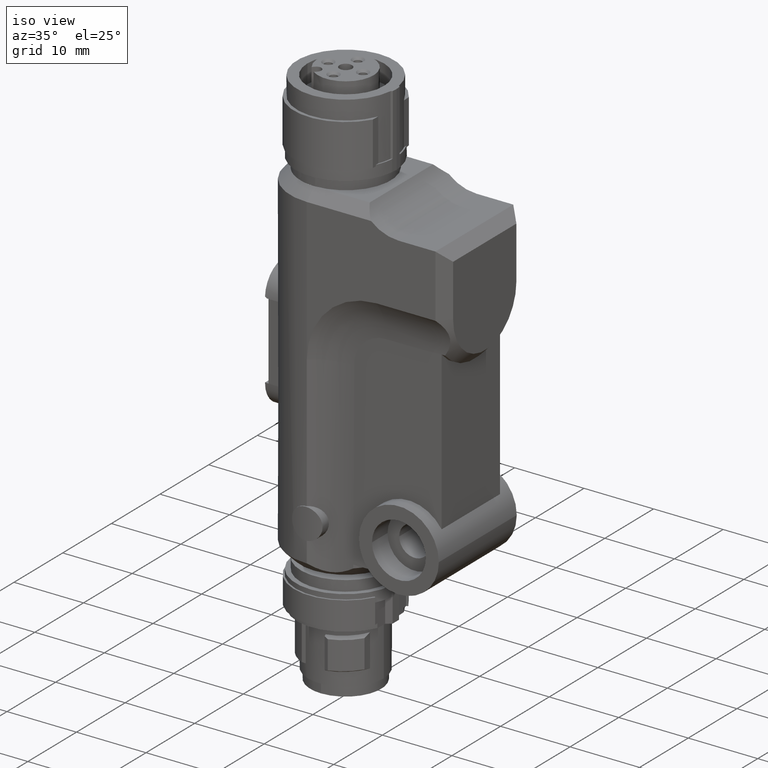
[diagram: clean part render]
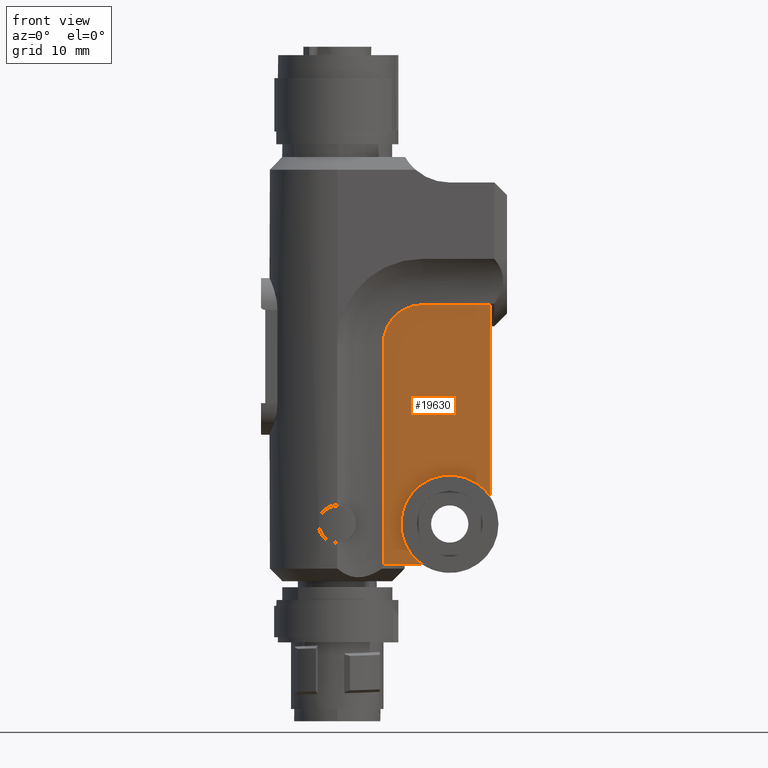
[diagram: tour spotlight — one face highlighted and labeled with its STEP entity id]
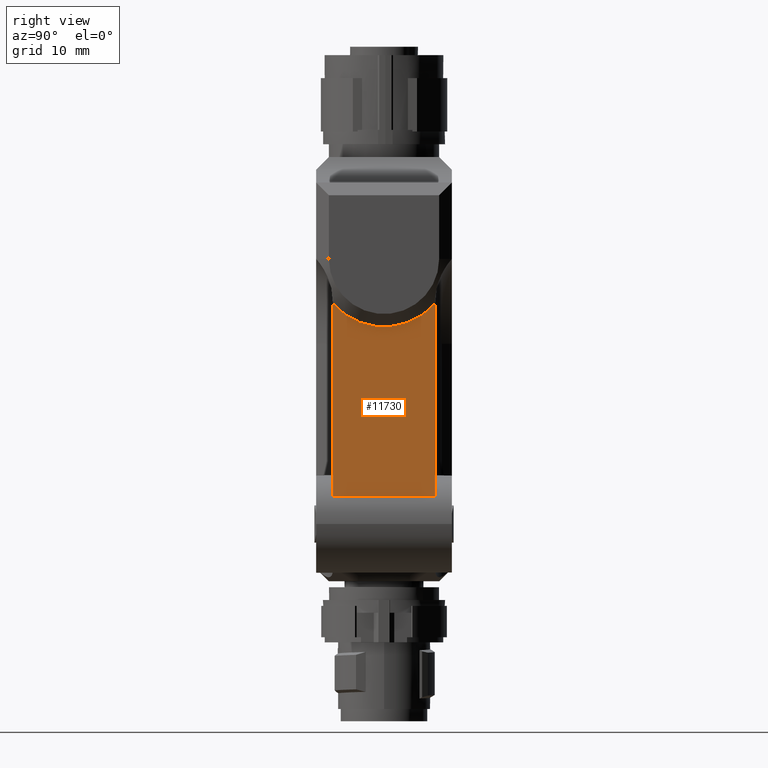
[diagram: tour spotlight — one face highlighted and labeled with its STEP entity id]
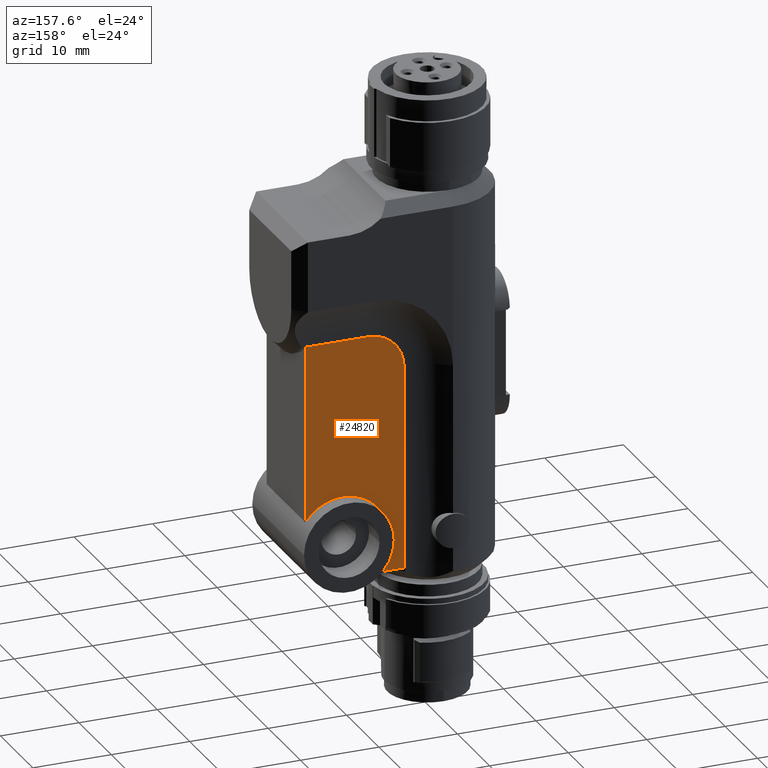
[diagram: tour spotlight — one face highlighted and labeled with its STEP entity id]
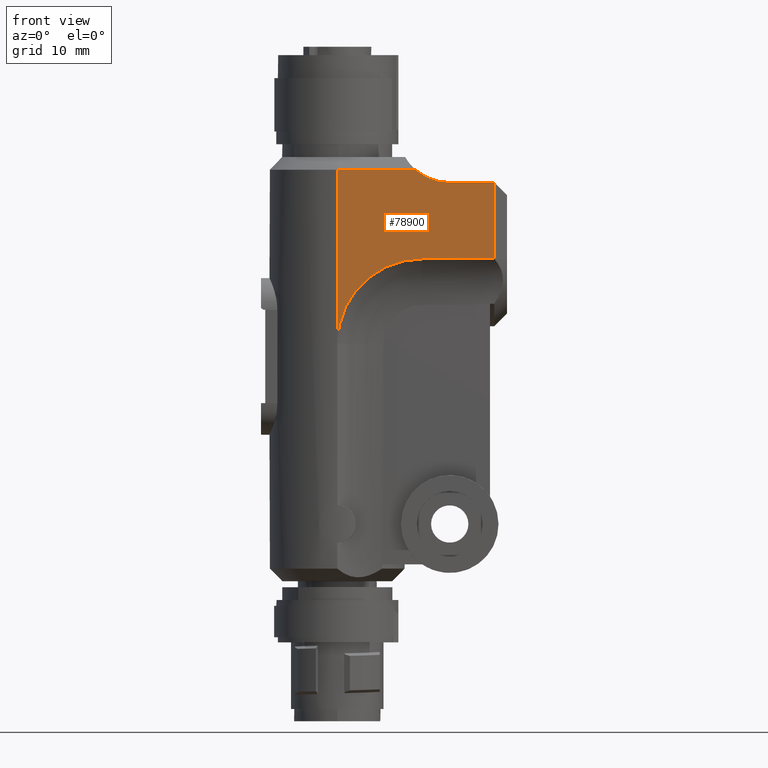
[diagram: tour spotlight — one face highlighted and labeled with its STEP entity id]
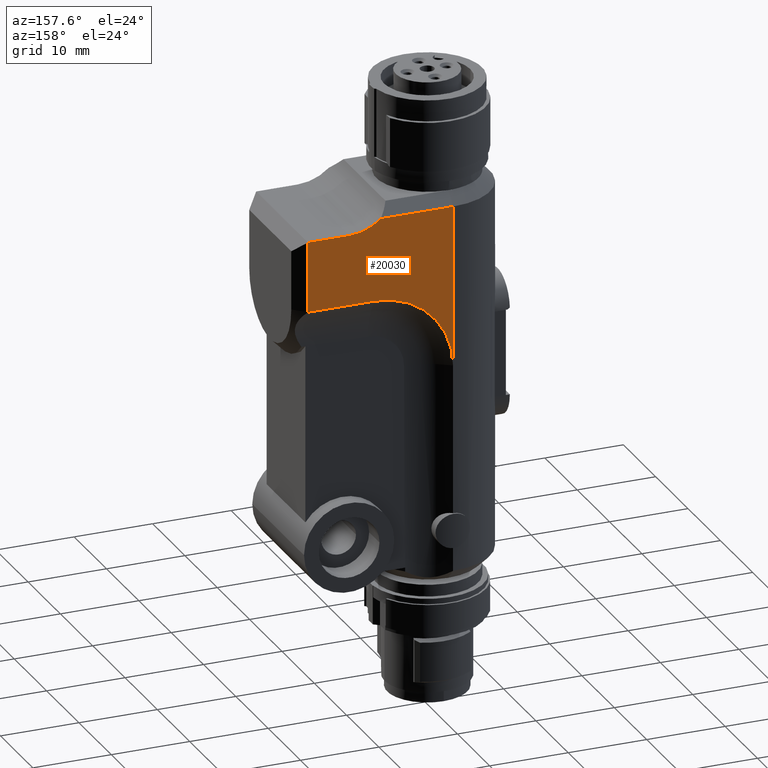
[diagram: tour spotlight — one face highlighted and labeled with its STEP entity id]
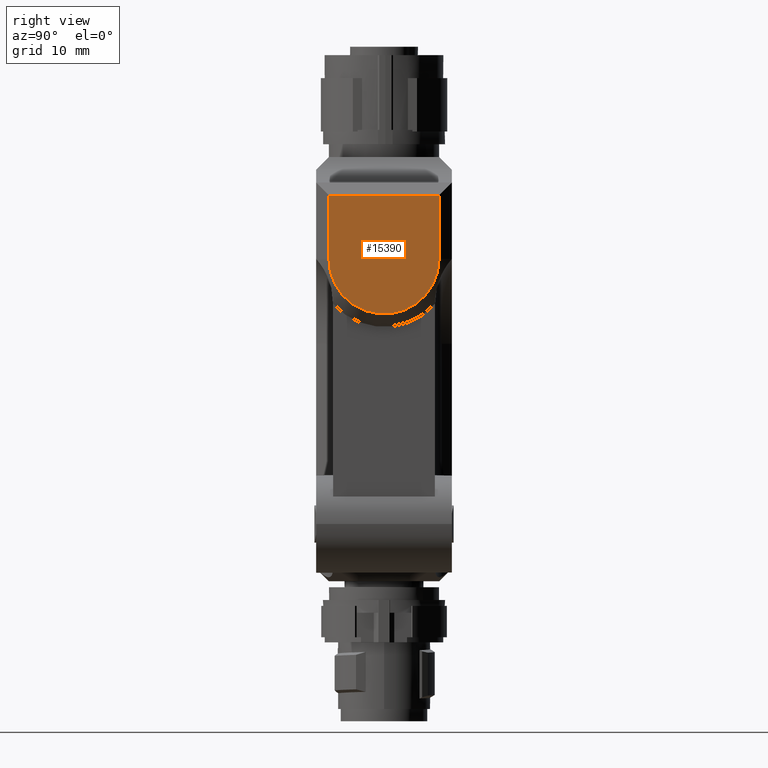
[diagram: tour spotlight — one face highlighted and labeled with its STEP entity id]
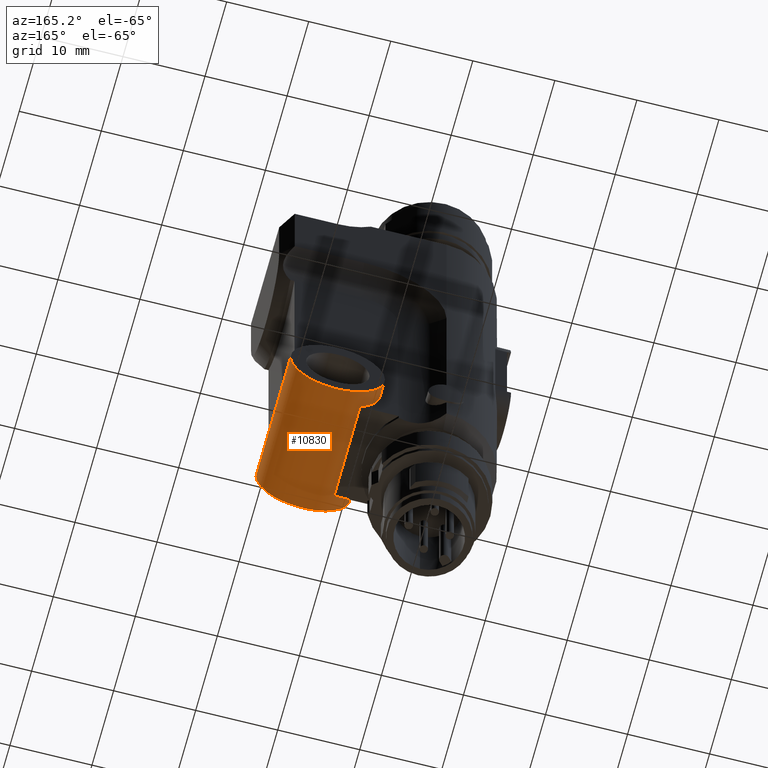
[diagram: tour spotlight — one face highlighted and labeled with its STEP entity id]
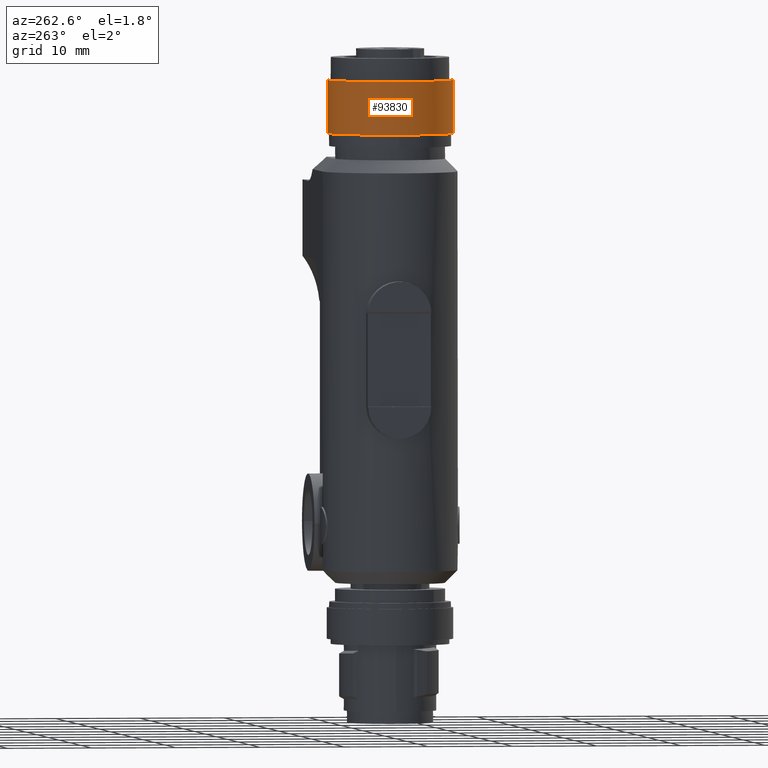
[diagram: tour spotlight — one face highlighted and labeled with its STEP entity id]
A machine part: a face-by-face anatomy tour. The part has 171 B-rep faces; the first image is the clean iso view, then the 8 largest visible faces are spotlighted one at a time (largest first), each with its STEP entity span.

Face 1 — front view, entity #19630. In plain terms, the highlighted planar face has unit normal (0, -1, 0).
Definition (entity closure, byte-faithful):
#10620=CARTESIAN_POINT('',(6.001,10.009629650796,2.));
#10630=VERTEX_POINT('',#10620);
#10660=CARTESIAN_POINT('',(6.001,13.25,6.75000000000001));
#10670=DIRECTION('',(1.,0.,0.));
#10680=DIRECTION('',(0.,1.,0.));
#10690=AXIS2_PLACEMENT_3D('',#10660,#10670,#10680);
#10700=CIRCLE('',#10690,5.75000000000003);
#10710=CARTESIAN_POINT('',(6.001,7.49999999999997,6.75000000000001));
#10720=VERTEX_POINT('',#10710);
#10730=EDGE_CURVE('',#10720,#10630,#10700,.T.);
#11250=CARTESIAN_POINT('',(6.001,18.,32.582010224373));
#11260=VERTEX_POINT('',#11250);
#11610=CARTESIAN_POINT('',(6.001,18.,9.99037034920399));
#11620=VERTEX_POINT('',#11610);
#11650=CARTESIAN_POINT('',(6.001,18.,0.));
#11660=DIRECTION('',(0.,-1.88064205402298E-31,-1.));
#11670=VECTOR('',#11660,1.);
#11680=LINE('',#11650,#11670);
#11690=EDGE_CURVE('',#11260,#11620,#11680,.T.);
#18050=CARTESIAN_POINT('',(6.001,5.41798977562688,2.));
#18060=VERTEX_POINT('',#18050);
#18090=CARTESIAN_POINT('',(6.001,0.,2.));
#18100=DIRECTION('',(0.,-1.,0.));
#18110=VECTOR('',#18100,1.);
#18120=LINE('',#18090,#18110);
#18130=EDGE_CURVE('',#10630,#18060,#18120,.T.);
#19280=CARTESIAN_POINT('',(6.001,15.4615034935439,27.3375668471251));
#19290=DIRECTION('',(1.,0.,0.));
#19300=DIRECTION('',(0.,-1.,0.));
#19310=AXIS2_PLACEMENT_3D('',#19280,#19290,#19300);
#19320=PLANE('',#19310);
#19330=CARTESIAN_POINT('',(6.001,20.,32.582010224373));
#19340=DIRECTION('',(0.,1.,0.));
#19350=VECTOR('',#19340,1.);
#19360=LINE('',#19330,#19350);
#19370=CARTESIAN_POINT('',(6.001,9.99979125739767,32.5820102196181));
#19380=VERTEX_POINT('',#19370);
#19390=EDGE_CURVE('',#19380,#11260,#19360,.T.);
#19400=ORIENTED_EDGE('',*,*,#19390,.F.);
#19410=ORIENTED_EDGE('',*,*,#11690,.F.);
#19420=EDGE_CURVE('',#11620,#10720,#10700,.T.);
#19430=ORIENTED_EDGE('',*,*,#19420,.F.);
#19440=ORIENTED_EDGE('',*,*,#10730,.F.);
#19450=ORIENTED_EDGE('',*,*,#18130,.F.);
#19460=CARTESIAN_POINT('',(6.001,5.41798977562688,0.));
#19470=DIRECTION('',(0.,0.,-1.));
#19480=VECTOR('',#19470,1.);
#19490=LINE('',#19460,#19480);
#19500=CARTESIAN_POINT('',(6.001,5.41798977562713,28.));
#19510=VERTEX_POINT('',#19500);
#19520=EDGE_CURVE('',#19510,#18060,#19490,.T.);
#19530=ORIENTED_EDGE('',*,*,#19520,.T.);
#19540=CARTESIAN_POINT('',(6.001,10.,28.));
#19550=DIRECTION('',(1.,4.93038065763133E-31,2.52970265222012E-16));
#19560=DIRECTION('',(6.89181434628495E-31,-1.,-7.75361359933837E-16));
#19570=AXIS2_PLACEMENT_3D('',#19540,#19550,#19560);
#19580=CIRCLE('',#19570,4.58201022437288);
#19590=EDGE_CURVE('',#19380,#19510,#19580,.T.);
#19600=ORIENTED_EDGE('',*,*,#19590,.T.);
#19610=EDGE_LOOP('',(#19600,#19530,#19450,#19440,#19430,#19410,#19400));
#19620=FACE_OUTER_BOUND('',#19610,.T.);
#19630=ADVANCED_FACE('',(#19620),#19320,.T.);

Face 2 — right view, entity #11730. In plain terms, the highlighted planar face has unit normal (1, -0, -0).
Definition (entity closure, byte-faithful):
#11150=CARTESIAN_POINT('',(0.0100000000000307,18.,31.7650020016016));
#11160=DIRECTION('',(3.08395284618109E-17,1.,-1.88064205402298E-31));
#11170=DIRECTION('',(-1.,3.08395284618109E-17,8.91609571378369E-16));
#11180=AXIS2_PLACEMENT_3D('',#11150,#11160,#11170);
#11190=PLANE('',#11180);
#11200=CARTESIAN_POINT('',(14.0000000000001,18.,32.7084973778708));
#11210=DIRECTION('',(0.,1.,0.));
#11220=DIRECTION('',(0.,0.,1.));
#11230=AXIS2_PLACEMENT_3D('',#11200,#11210,#11220);
#11240=CIRCLE('',#11230,8.00000000000009);
#11250=CARTESIAN_POINT('',(6.001,18.,32.582010224373));
#11260=VERTEX_POINT('',#11250);
#11270=CARTESIAN_POINT('',(6.,18.,32.7084973778707));
#11280=VERTEX_POINT('',#11270);
#11290=EDGE_CURVE('',#11260,#11280,#11240,.T.);
#11300=ORIENTED_EDGE('',*,*,#11290,.F.);
#11310=CARTESIAN_POINT('',(-2.79776202205539E-14,18.,38.0000000000001));
#11320=DIRECTION('',(0.,1.,0.));
#11330=DIRECTION('',(-1.,0.,6.06816080939055E-32));
#11340=AXIS2_PLACEMENT_3D('',#11310,#11320,#11330);
#11350=CIRCLE('',#11340,8.00000000000019);
#11360=CARTESIAN_POINT('',(-6.,18.,32.7084973778706));
#11370=VERTEX_POINT('',#11360);
#11380=EDGE_CURVE('',#11280,#11370,#11350,.T.);
#11390=ORIENTED_EDGE('',*,*,#11380,.F.);
#11400=CARTESIAN_POINT('',(-14.0000000000001,18.,32.7084973778708));
#11410=DIRECTION('',(0.,-1.,0.));
#11420=DIRECTION('',(0.,0.,1.));
#11430=AXIS2_PLACEMENT_3D('',#11400,#11410,#11420);
#11440=CIRCLE('',#11430,8.00000000000009);
#11450=CARTESIAN_POINT('',(-6.001,18.,32.582010224373));
#11460=VERTEX_POINT('',#11450);
#11470=EDGE_CURVE('',#11460,#11370,#11440,.T.);
#11480=ORIENTED_EDGE('',*,*,#11470,.T.);
#11490=CARTESIAN_POINT('',(-6.001,18.,0.));
#11500=DIRECTION('',(0.,-1.88064205402298E-31,-1.));
#11510=VECTOR('',#11500,1.);
#11520=LINE('',#11490,#11510);
#11530=CARTESIAN_POINT('',(-6.001,18.,9.99037034920399));
#11540=VERTEX_POINT('',#11530);
#11550=EDGE_CURVE('',#11460,#11540,#11520,.T.);
#11560=ORIENTED_EDGE('',*,*,#11550,.F.);
#11570=CARTESIAN_POINT('',(8.,18.,9.99037034920399));
#11580=DIRECTION('',(1.,0.,0.));
#11590=VECTOR('',#11580,1.);
#11600=LINE('',#11570,#11590);
#11610=CARTESIAN_POINT('',(6.001,18.,9.99037034920399));
#11620=VERTEX_POINT('',#11610);
#11630=EDGE_CURVE('',#11540,#11620,#11600,.T.);
#11640=ORIENTED_EDGE('',*,*,#11630,.F.);
#11650=CARTESIAN_POINT('',(6.001,18.,0.));
#11660=DIRECTION('',(0.,-1.88064205402298E-31,-1.));
#11670=VECTOR('',#11660,1.);
#11680=LINE('',#11650,#11670);
#11690=EDGE_CURVE('',#11260,#11620,#11680,.T.);
#11700=ORIENTED_EDGE('',*,*,#11690,.T.);
#11710=EDGE_LOOP('',(#11700,#11640,#11560,#11480,#11390,#11300));
#11720=FACE_OUTER_BOUND('',#11710,.T.);
#11730=ADVANCED_FACE('',(#11720),#11190,.T.);

Face 3 — auxiliary view, entity #24820. In plain terms, the highlighted planar face has unit normal (0, -1, 0).
Definition (entity closure, byte-faithful):
#10450=CARTESIAN_POINT('',(-6.001,7.49999999999997,6.75000000000001));
#10460=VERTEX_POINT('',#10450);
#10490=CARTESIAN_POINT('',(-6.001,13.25,6.75000000000001));
#10500=DIRECTION('',(1.,0.,0.));
#10510=DIRECTION('',(0.,1.,0.));
#10520=AXIS2_PLACEMENT_3D('',#10490,#10500,#10510);
#10530=CIRCLE('',#10520,5.75000000000003);
#10540=CARTESIAN_POINT('',(-6.001,10.009629650796,2.));
#10550=VERTEX_POINT('',#10540);
#10560=EDGE_CURVE('',#10460,#10550,#10530,.T.);
#11450=CARTESIAN_POINT('',(-6.001,18.,32.582010224373));
#11460=VERTEX_POINT('',#11450);
#11490=CARTESIAN_POINT('',(-6.001,18.,0.));
#11500=DIRECTION('',(0.,-1.88064205402298E-31,-1.));
#11510=VECTOR('',#11500,1.);
#11520=LINE('',#11490,#11510);
#11530=CARTESIAN_POINT('',(-6.001,18.,9.99037034920399));
#11540=VERTEX_POINT('',#11530);
#11550=EDGE_CURVE('',#11460,#11540,#11520,.T.);
#14920=CARTESIAN_POINT('',(-6.001,5.41798977562688,2.));
#14930=VERTEX_POINT('',#14920);
#14960=CARTESIAN_POINT('',(-6.001,5.41798977562688,0.));
#14970=DIRECTION('',(0.,0.,-1.));
#14980=VECTOR('',#14970,1.);
#14990=LINE('',#14960,#14980);
#15000=CARTESIAN_POINT('',(-6.001,5.41798977562688,28.));
#15010=VERTEX_POINT('',#15000);
#15020=EDGE_CURVE('',#15010,#14930,#14990,.T.);
#18160=CARTESIAN_POINT('',(-6.001,0.,2.));
#18170=DIRECTION('',(0.,-1.,0.));
#18180=VECTOR('',#18170,1.);
#18190=LINE('',#18160,#18180);
#18200=EDGE_CURVE('',#10550,#14930,#18190,.T.);
#24540=CARTESIAN_POINT('',(-6.001,15.4615034935439,27.3375668471251));
#24550=DIRECTION('',(1.,0.,0.));
#24560=DIRECTION('',(0.,-1.,0.));
#24570=AXIS2_PLACEMENT_3D('',#24540,#24550,#24560);
#24580=PLANE('',#24570);
#24590=CARTESIAN_POINT('',(-6.001,10.,28.));
#24600=DIRECTION('',(1.,-4.93038065763133E-31,-2.52970265222012E-16));
#24610=DIRECTION('',(-6.8918143462851E-31,-1.,-7.75361359933893E-16));
#24620=AXIS2_PLACEMENT_3D('',#24590,#24600,#24610);
#24630=CIRCLE('',#24620,4.58201022437255);
#24640=CARTESIAN_POINT('',(-6.001,9.99979126227064,32.5820102196179));
#24650=VERTEX_POINT('',#24640);
#24660=EDGE_CURVE('',#24650,#15010,#24630,.T.);
#24670=ORIENTED_EDGE('',*,*,#24660,.F.);
#24680=ORIENTED_EDGE('',*,*,#15020,.F.);
#24690=ORIENTED_EDGE('',*,*,#18200,.T.);
#24700=ORIENTED_EDGE('',*,*,#10560,.T.);
#24710=EDGE_CURVE('',#11540,#10460,#10530,.T.);
#24720=ORIENTED_EDGE('',*,*,#24710,.T.);
#24730=ORIENTED_EDGE('',*,*,#11550,.T.);
#24740=CARTESIAN_POINT('',(-6.001,20.,32.582010224373));
#24750=DIRECTION('',(0.,1.,0.));
#24760=VECTOR('',#24750,1.);
#24770=LINE('',#24740,#24760);
#24780=EDGE_CURVE('',#24650,#11460,#24770,.T.);
#24790=ORIENTED_EDGE('',*,*,#24780,.T.);
#24800=EDGE_LOOP('',(#24790,#24730,#24720,#24700,#24690,#24680,#24670));
#24810=FACE_OUTER_BOUND('',#24800,.T.);
#24820=ADVANCED_FACE('',(#24810),#24580,.F.);

Face 4 — front view, entity #78900. In plain terms, the highlighted planar face has unit normal (0, -1, 0).
Definition (entity closure, byte-faithful):
#4860=CARTESIAN_POINT('',(8.,3.5527136788005E-15,0.));
#4870=DIRECTION('',(0.,0.,-1.));
#4880=VECTOR('',#4870,1.);
#4890=LINE('',#4860,#4880);
#4900=CARTESIAN_POINT('',(8.,5.28330100839187E-15,48.5));
#4910=VERTEX_POINT('',#4900);
#4920=CARTESIAN_POINT('',(8.,1.95399252334028E-14,28.0000000000002));
#4930=VERTEX_POINT('',#4920);
#4940=EDGE_CURVE('',#4910,#4930,#4890,.T.);
#9790=CARTESIAN_POINT('',(8.,18.5,38.));
#9800=VERTEX_POINT('',#9790);
#9830=CARTESIAN_POINT('',(8.,18.5,0.));
#9840=DIRECTION('',(0.,0.,-1.));
#9850=VECTOR('',#9840,1.);
#9860=LINE('',#9830,#9850);
#9870=CARTESIAN_POINT('',(8.,18.5,47.));
#9880=VERTEX_POINT('',#9870);
#9890=EDGE_CURVE('',#9880,#9800,#9860,.T.);
#18640=CARTESIAN_POINT('',(8.,13.1961524227066,47.));
#18650=VERTEX_POINT('',#18640);
#18770=CARTESIAN_POINT('',(8.,0.,47.));
#18780=DIRECTION('',(0.,-1.,0.));
#18790=VECTOR('',#18780,1.);
#18800=LINE('',#18770,#18790);
#18810=EDGE_CURVE('',#9880,#18650,#18800,.T.);
#19090=CARTESIAN_POINT('',(8.,13.1961524227066,53.));
#19100=DIRECTION('',(-1.,0.,0.));
#19110=DIRECTION('',(0.,1.,0.));
#19120=AXIS2_PLACEMENT_3D('',#19090,#19100,#19110);
#19130=CIRCLE('',#19120,5.99999999999996);
#19140=CARTESIAN_POINT('',(8.,9.2275254561098,48.5));
#19150=VERTEX_POINT('',#19140);
#19160=EDGE_CURVE('',#18650,#19150,#19130,.T.);
#23620=CARTESIAN_POINT('',(8.,20.,38.));
#23630=DIRECTION('',(0.,1.,0.));
#23640=VECTOR('',#23630,1.);
#23650=LINE('',#23620,#23640);
#23660=CARTESIAN_POINT('',(8.,10.0002770649337,38.));
#23670=VERTEX_POINT('',#23660);
#23680=EDGE_CURVE('',#23670,#9800,#23650,.T.);
#24880=CARTESIAN_POINT('',(8.,10.,28.));
#24890=DIRECTION('',(1.,4.93038065763133E-31,2.52970265222012E-16));
#24900=DIRECTION('',(7.62657342238343E-31,-1.,-1.06581410364015E-15));
#24910=AXIS2_PLACEMENT_3D('',#24880,#24890,#24900);
#24920=CIRCLE('',#24910,9.99999999999999);
#24930=EDGE_CURVE('',#23670,#4930,#24920,.T.);
#78590=CARTESIAN_POINT('',(8.,0.,48.5));
#78600=DIRECTION('',(0.,-1.,0.));
#78610=VECTOR('',#78600,1.);
#78620=LINE('',#78590,#78610);
#78630=EDGE_CURVE('',#19150,#4910,#78620,.T.);
#78760=CARTESIAN_POINT('',(8.,7.46028462077985,13.0533067988253));
#78770=DIRECTION('',(1.,0.,0.));
#78780=DIRECTION('',(0.,-1.,0.));
#78790=AXIS2_PLACEMENT_3D('',#78760,#78770,#78780);
#78800=PLANE('',#78790);
#78810=ORIENTED_EDGE('',*,*,#4940,.T.);
#78820=ORIENTED_EDGE('',*,*,#78630,.T.);
#78830=ORIENTED_EDGE('',*,*,#19160,.T.);
#78840=ORIENTED_EDGE('',*,*,#18810,.T.);
#78850=ORIENTED_EDGE('',*,*,#9890,.F.);
#78860=ORIENTED_EDGE('',*,*,#23680,.T.);
#78870=ORIENTED_EDGE('',*,*,#24930,.F.);
#78880=EDGE_LOOP('',(#78870,#78860,#78850,#78840,#78830,#78820,#78810));
#78890=FACE_OUTER_BOUND('',#78880,.T.);
#78900=ADVANCED_FACE('',(#78890),#78800,.T.);

Face 5 — auxiliary view, entity #20030. In plain terms, the highlighted planar face has unit normal (0, -1, 0).
Definition (entity closure, byte-faithful):
#9360=CARTESIAN_POINT('',(-8.,4.56777472988637E-15,28.0000000000002));
#9370=VERTEX_POINT('',#9360);
#9400=CARTESIAN_POINT('',(-8.,3.5527136788005E-15,0.));
#9410=DIRECTION('',(0.,0.,-1.));
#9420=VECTOR('',#9410,1.);
#9430=LINE('',#9400,#9420);
#9440=CARTESIAN_POINT('',(-7.99999999999999,3.55271367880052E-15,48.5));
#9450=VERTEX_POINT('',#9440);
#9460=EDGE_CURVE('',#9450,#9370,#9430,.T.);
#10950=CARTESIAN_POINT('',(-7.99999999999999,18.5,47.));
#10960=VERTEX_POINT('',#10950);
#18660=CARTESIAN_POINT('',(-7.99999999999999,13.1961524227066,47.));
#18670=VERTEX_POINT('',#18660);
#18700=CARTESIAN_POINT('',(-8.,0.,47.));
#18710=DIRECTION('',(0.,-1.,0.));
#18720=VECTOR('',#18710,1.);
#18730=LINE('',#18700,#18720);
#18740=EDGE_CURVE('',#10960,#18670,#18730,.T.);
#18970=CARTESIAN_POINT('',(-8.,9.22752545610978,48.5));
#18980=VERTEX_POINT('',#18970);
#19010=CARTESIAN_POINT('',(-8.,13.1961524227066,53.));
#19020=DIRECTION('',(-1.,0.,0.));
#19030=DIRECTION('',(0.,1.,0.));
#19040=AXIS2_PLACEMENT_3D('',#19010,#19020,#19030);
#19050=CIRCLE('',#19040,5.99999999999996);
#19060=EDGE_CURVE('',#18670,#18980,#19050,.T.);
#19640=CARTESIAN_POINT('',(-7.99999999999999,7.46028462077985,
13.0533067988253));
#19650=DIRECTION('',(1.,0.,0.));
#19660=DIRECTION('',(0.,-1.,0.));
#19670=AXIS2_PLACEMENT_3D('',#19640,#19650,#19660);
#19680=PLANE('',#19670);
#19690=CARTESIAN_POINT('',(-7.99999999999999,20.,38.));
#19700=DIRECTION('',(0.,1.,0.));
#19710=VECTOR('',#19700,1.);
#19720=LINE('',#19690,#19710);
#19730=CARTESIAN_POINT('',(-7.99999999999999,10.,38.));
#19740=VERTEX_POINT('',#19730);
#19750=CARTESIAN_POINT('',(-7.99999999999999,18.5,38.));
#19760=VERTEX_POINT('',#19750);
#19770=EDGE_CURVE('',#19740,#19760,#19720,.T.);
#19780=ORIENTED_EDGE('',*,*,#19770,.F.);
#19790=CARTESIAN_POINT('',(-8.,18.5,0.));
#19800=DIRECTION('',(0.,0.,-1.));
#19810=VECTOR('',#19800,1.);
#19820=LINE('',#19790,#19810);
#19830=EDGE_CURVE('',#10960,#19760,#19820,.T.);
#19840=ORIENTED_EDGE('',*,*,#19830,.T.);
#19850=ORIENTED_EDGE('',*,*,#18740,.F.);
#19860=ORIENTED_EDGE('',*,*,#19060,.F.);
#19870=CARTESIAN_POINT('',(-8.,0.,48.5));
#19880=DIRECTION('',(0.,-1.,0.));
#19890=VECTOR('',#19880,1.);
#19900=LINE('',#19870,#19890);
#19910=EDGE_CURVE('',#18980,#9450,#19900,.T.);
#19920=ORIENTED_EDGE('',*,*,#19910,.F.);
#19930=ORIENTED_EDGE('',*,*,#9460,.F.);
#19940=CARTESIAN_POINT('',(-7.99999999999999,10.,28.));
#19950=DIRECTION('',(1.,-4.93038065763133E-31,-2.52970265222012E-16));
#19960=DIRECTION('',(-7.62657342238343E-31,-1.,-1.06581410364015E-15));
#19970=AXIS2_PLACEMENT_3D('',#19940,#19950,#19960);
#19980=CIRCLE('',#19970,9.99999999999999);
#19990=EDGE_CURVE('',#19740,#9370,#19980,.T.);
#20000=ORIENTED_EDGE('',*,*,#19990,.T.);
#20010=EDGE_LOOP('',(#20000,#19930,#19920,#19860,#19850,#19840,#19780));
#20020=FACE_OUTER_BOUND('',#20010,.T.);
#20030=ADVANCED_FACE('',(#20020),#19680,.F.);

Face 6 — right view, entity #15390. In plain terms, the highlighted planar face has unit normal (1, -0, -0).
Definition (entity closure, byte-faithful):
#9700=CARTESIAN_POINT('',(6.50000000000003,20.,38.0000000000001));
#9710=VERTEX_POINT('',#9700);
#9950=CARTESIAN_POINT('',(6.50000000000003,20.,45.5));
#9960=VERTEX_POINT('',#9950);
#9990=CARTESIAN_POINT('',(6.50000000000003,20.,0.));
#10000=DIRECTION('',(0.,0.,-1.));
#10010=VECTOR('',#10000,1.);
#10020=LINE('',#9990,#10010);
#10030=EDGE_CURVE('',#9960,#9710,#10020,.T.);
#10930=CARTESIAN_POINT('',(-6.50000000000003,20.,45.5));
#10940=VERTEX_POINT('',#10930);
#10990=CARTESIAN_POINT('',(0.,20.,45.5));
#11000=DIRECTION('',(-1.,0.,0.));
#11010=VECTOR('',#11000,1.);
#11020=LINE('',#10990,#11010);
#11030=EDGE_CURVE('',#9960,#10940,#11020,.T.);
#15150=CARTESIAN_POINT('',(0.0100000000000432,20.,45.51));
#15160=DIRECTION('',(3.08395284618109E-17,1.,-1.88064205402298E-31));
#15170=DIRECTION('',(-1.,3.08395284618109E-17,8.91609571378369E-16));
#15180=AXIS2_PLACEMENT_3D('',#15150,#15160,#15170);
#15190=PLANE('',#15180);
#15200=CARTESIAN_POINT('',(-6.50000000000003,20.,0.));
#15210=DIRECTION('',(0.,0.,-1.));
#15220=VECTOR('',#15210,1.);
#15230=LINE('',#15200,#15220);
#15240=CARTESIAN_POINT('',(-6.50000000000003,20.,38.0000000000001));
#15250=VERTEX_POINT('',#15240);
#15260=EDGE_CURVE('',#10940,#15250,#15230,.T.);
#15270=ORIENTED_EDGE('',*,*,#15260,.F.);
#15280=CARTESIAN_POINT('',(-2.79776202205539E-14,20.,38.0000000000001));
#15290=DIRECTION('',(0.,-1.,0.));
#15300=DIRECTION('',(-1.,0.,0.));
#15310=AXIS2_PLACEMENT_3D('',#15280,#15290,#15300);
#15320=CIRCLE('',#15310,6.5000000000002);
#15330=EDGE_CURVE('',#15250,#9710,#15320,.T.);
#15340=ORIENTED_EDGE('',*,*,#15330,.F.);
#15350=ORIENTED_EDGE('',*,*,#10030,.T.);
#15360=ORIENTED_EDGE('',*,*,#11030,.F.);
#15370=EDGE_LOOP('',(#15360,#15350,#15340,#15270));
#15380=FACE_OUTER_BOUND('',#15370,.T.);
#15390=ADVANCED_FACE('',(#15380),#15190,.T.);

Face 7 — auxiliary view, entity #10830. In plain terms, the highlighted cylindrical surface (partial cylindrical patch) has radius 5.75 mm, axis along (0, -1, 0).
Definition (entity closure, byte-faithful):
#10080=CARTESIAN_POINT('',(8.,13.25,6.75000000000001));
#10090=DIRECTION('',(1.,0.,0.));
#10100=DIRECTION('',(0.,1.,0.));
#10110=AXIS2_PLACEMENT_3D('',#10080,#10090,#10100);
#10120=CYLINDRICAL_SURFACE('',#10110,5.75000000000003);
#10130=CARTESIAN_POINT('',(8.,13.25,6.75000000000001));
#10140=DIRECTION('',(1.,0.,0.));
#10150=DIRECTION('',(0.,1.,0.));
#10160=AXIS2_PLACEMENT_3D('',#10130,#10140,#10150);
#10170=CIRCLE('',#10160,5.75000000000003);
#10180=CARTESIAN_POINT('',(8.,10.5214545305889,1.688622754491));
#10190=VERTEX_POINT('',#10180);
#10200=CARTESIAN_POINT('',(8.,19.,6.75000000000001));
#10210=VERTEX_POINT('',#10200);
#10220=EDGE_CURVE('',#10190,#10210,#10170,.T.);
#10230=ORIENTED_EDGE('',*,*,#10220,.F.);
#10240=CARTESIAN_POINT('',(8.,19.,6.75000000000001));
#10250=DIRECTION('',(1.,0.,0.));
#10260=VECTOR('',#10250,1.);
#10270=LINE('',#10240,#10260);
#10280=CARTESIAN_POINT('',(-7.99999999999999,19.,6.75000000000001));
#10290=VERTEX_POINT('',#10280);
#10300=EDGE_CURVE('',#10290,#10210,#10270,.T.);
#10310=ORIENTED_EDGE('',*,*,#10300,.T.);
#10320=CARTESIAN_POINT('',(-7.99999999999999,13.25,6.75000000000001));
#10330=DIRECTION('',(1.,0.,0.));
#10340=DIRECTION('',(0.,1.,0.));
#10350=AXIS2_PLACEMENT_3D('',#10320,#10330,#10340);
#10360=CIRCLE('',#10350,5.75000000000003);
#10370=CARTESIAN_POINT('',(-7.99999999999999,7.49999999999997,
6.75000000000001));
#10380=VERTEX_POINT('',#10370);
#10390=EDGE_CURVE('',#10380,#10290,#10360,.T.);
#10400=ORIENTED_EDGE('',*,*,#10390,.T.);
#10410=CARTESIAN_POINT('',(8.,7.49999999999997,6.75000000000001));
#10420=DIRECTION('',(1.,0.,0.));
#10430=VECTOR('',#10420,1.);
#10440=LINE('',#10410,#10430);
#10450=CARTESIAN_POINT('',(-6.001,7.49999999999997,6.75000000000001));
#10460=VERTEX_POINT('',#10450);
#10470=EDGE_CURVE('',#10380,#10460,#10440,.T.);
#10480=ORIENTED_EDGE('',*,*,#10470,.F.);
#10490=CARTESIAN_POINT('',(-6.001,13.25,6.75000000000001));
#10500=DIRECTION('',(1.,0.,0.));
#10510=DIRECTION('',(0.,1.,0.));
#10520=AXIS2_PLACEMENT_3D('',#10490,#10500,#10510);
#10530=CIRCLE('',#10520,5.75000000000003);
#10540=CARTESIAN_POINT('',(-6.001,10.009629650796,2.));
#10550=VERTEX_POINT('',#10540);
#10560=EDGE_CURVE('',#10460,#10550,#10530,.T.);
#10570=ORIENTED_EDGE('',*,*,#10560,.F.);
#10580=CARTESIAN_POINT('',(8.,10.009629650796,2.));
#10590=DIRECTION('',(1.,0.,0.));
#10600=VECTOR('',#10590,1.);
#10610=LINE('',#10580,#10600);
#10620=CARTESIAN_POINT('',(6.001,10.009629650796,2.));
#10630=VERTEX_POINT('',#10620);
#10640=EDGE_CURVE('',#10550,#10630,#10610,.T.);
#10650=ORIENTED_EDGE('',*,*,#10640,.F.);
#10660=CARTESIAN_POINT('',(6.001,13.25,6.75000000000001));
#10670=DIRECTION('',(1.,0.,0.));
#10680=DIRECTION('',(0.,1.,0.));
#10690=AXIS2_PLACEMENT_3D('',#10660,#10670,#10680);
#10700=CIRCLE('',#10690,5.75000000000003);
#10710=CARTESIAN_POINT('',(6.001,7.49999999999997,6.75000000000001));
#10720=VERTEX_POINT('',#10710);
#10730=EDGE_CURVE('',#10720,#10630,#10700,.T.);
#10740=ORIENTED_EDGE('',*,*,#10730,.T.);
#10750=CARTESIAN_POINT('',(8.,7.49999999999997,6.75000000000001));
#10760=VERTEX_POINT('',#10750);
#10770=EDGE_CURVE('',#10720,#10760,#10440,.T.);
#10780=ORIENTED_EDGE('',*,*,#10770,.F.);
#10790=EDGE_CURVE('',#10760,#10190,#10170,.T.);
#10800=ORIENTED_EDGE('',*,*,#10790,.F.);
#10810=EDGE_LOOP('',(#10800,#10780,#10740,#10650,#10570,#10480,#10400,
#10310,#10230));
#10820=FACE_OUTER_BOUND('',#10810,.T.);
#10830=ADVANCED_FACE('',(#10820),#10120,.T.);

Face 8 — auxiliary view, entity #93830. In plain terms, the highlighted cylindrical surface (partial cylindrical patch) has radius 7.45 mm, axis along (0, 0, -1).
Definition (entity closure, byte-faithful):
#92550=CARTESIAN_POINT('',(3.67160255092433,6.48200638171637,
59.3000000000013));
#92560=VERTEX_POINT('',#92550);
#92660=CARTESIAN_POINT('',(3.67160255091984,6.48200638171764,
53.0000000000013));
#92670=VERTEX_POINT('',#92660);
#92700=CARTESIAN_POINT('',(3.67160255092428,6.48200638171641,
59.3000000000013));
#92710=DIRECTION('',(-7.04748073180209E-13,1.96644706017608E-13,-1.));
#92720=VECTOR('',#92710,1.);
#92730=LINE('',#92700,#92720);
#92740=EDGE_CURVE('',#92560,#92670,#92730,.T.);
#92900=CARTESIAN_POINT('',(-3.89559434497027,6.34992046863241,
59.3000000000066));
#92910=VERTEX_POINT('',#92900);
#92960=CARTESIAN_POINT('',(2.4938697014143E-6,-0.000420094614575817,
59.3000000000026));
#92970=DIRECTION('',(-7.04748073180209E-13,1.96644706017608E-13,-1.));
#92980=DIRECTION('',(0.99972647388392,0.0233875483030034,
-6.99956268616419E-13));
#92990=AXIS2_PLACEMENT_3D('',#92960,#92970,#92980);
#93000=CIRCLE('',#92990,7.45);
#93010=EDGE_CURVE('',#92560,#92910,#93000,.T.);
#93210=CARTESIAN_POINT('',(-3.89559434497028,6.34992046863241,
59.3000000000066));
#93220=DIRECTION('',(-7.04748073180209E-13,1.96644706017608E-13,-1.));
#93230=VECTOR('',#93220,1.);
#93240=LINE('',#93210,#93230);
#93250=CARTESIAN_POINT('',(-3.89559434497472,6.34992046863364,
53.0000000000066));
#93260=VERTEX_POINT('',#93250);
#93270=EDGE_CURVE('',#92910,#93260,#93240,.T.);
#93510=CARTESIAN_POINT('',(2.49386526418593E-6,-0.000420094613339472,
53.0000000000026));
#93520=DIRECTION('',(-7.04748073180209E-13,1.96644706017608E-13,-1.));
#93530=DIRECTION('',(0.99972647388392,0.0233875483030034,
-6.99956268616419E-13));
#93540=AXIS2_PLACEMENT_3D('',#93510,#93520,#93530);
#93550=CIRCLE('',#93540,7.45);
#93560=EDGE_CURVE('',#92670,#93260,#93550,.T.);
#93720=CARTESIAN_POINT('',(2.4938697014143E-6,-0.000420094614575817,
59.3000000000026));
#93730=DIRECTION('',(-7.04748073180209E-13,1.96644706017608E-13,-1.));
#93740=DIRECTION('',(0.99972647388392,0.0233875483030034,
-6.99956268616419E-13));
#93750=AXIS2_PLACEMENT_3D('',#93720,#93730,#93740);
#93760=CYLINDRICAL_SURFACE('',#93750,7.45);
#93770=ORIENTED_EDGE('',*,*,#93010,.T.);
#93780=ORIENTED_EDGE('',*,*,#92740,.F.);
#93790=ORIENTED_EDGE('',*,*,#93560,.F.);
#93800=ORIENTED_EDGE('',*,*,#93270,.T.);
#93810=EDGE_LOOP('',(#93800,#93790,#93780,#93770));
#93820=FACE_OUTER_BOUND('',#93810,.T.);
#93830=ADVANCED_FACE('',(#93820),#93760,.T.);